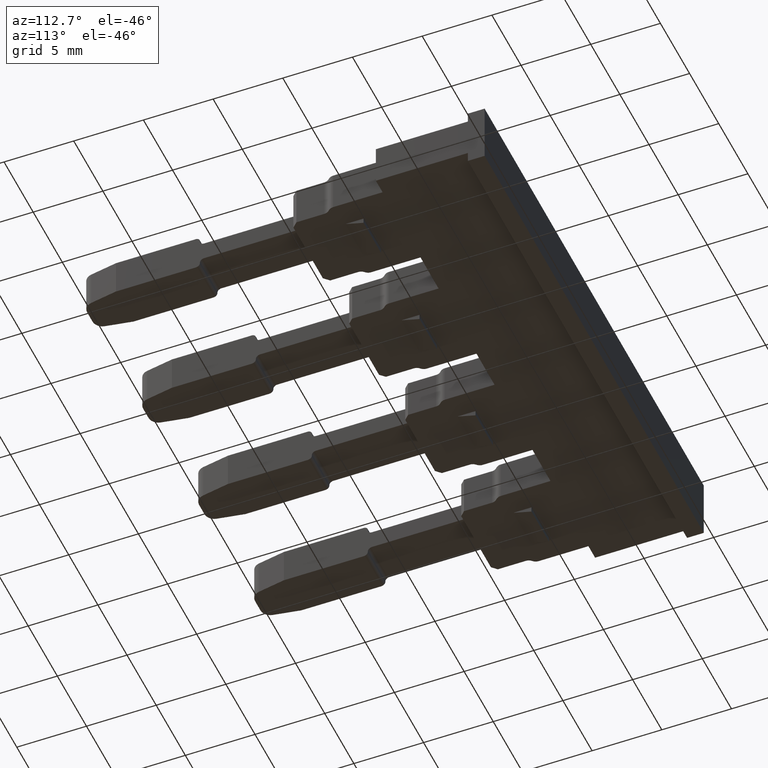
[diagram: clean part render]
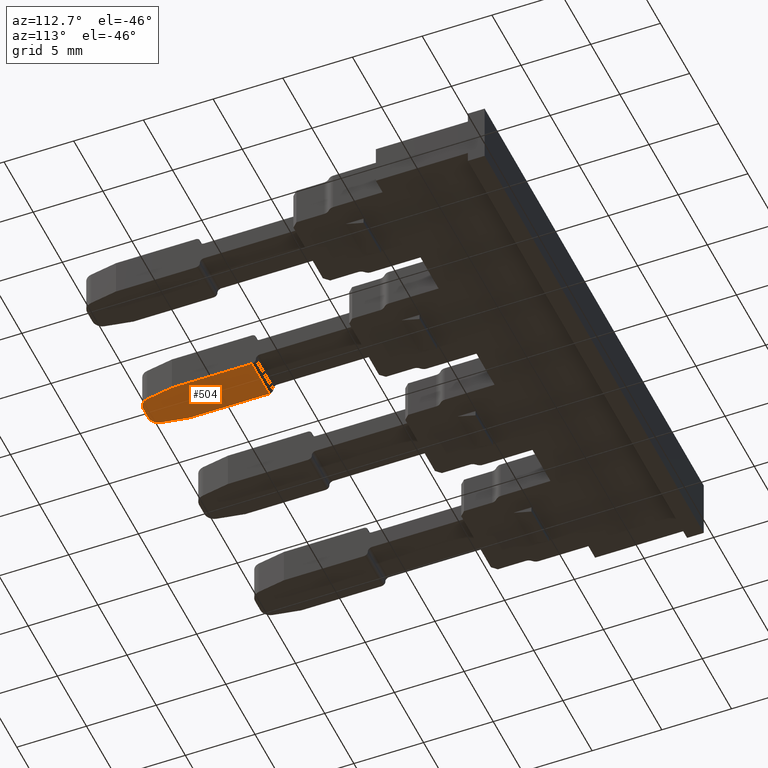
[diagram: same view with one face highlighted and labeled with its STEP entity id]
A machine part, auxiliary view. The second image highlights one B-rep face of the part: STEP entity #504.
In plain terms, the highlighted planar face has unit normal (0, -0, -1).
Its self-contained STEP definition (entity closure, byte-faithful):
#221 = EDGE_CURVE ( 'NONE', #5248, #5239, #5395, .T. ) ;
#229 = EDGE_CURVE ( 'NONE', #5221, #5223, #3565, .T. ) ;
#230 = EDGE_CURVE ( 'NONE', #5290, #5223, #5399, .T. ) ;
#249 = EDGE_CURVE ( 'NONE', #5249, #5202, #3654, .T. ) ;
#268 = EDGE_CURVE ( 'NONE', #5221, #5202, #3724, .T. ) ;
#275 = EDGE_CURVE ( 'NONE', #5290, #5239, #3744, .T. ) ;
#289 = EDGE_CURVE ( 'NONE', #5248, #5214, #3817, .T. ) ;
#329 = EDGE_CURVE ( 'NONE', #5214, #5249, #3880, .T. ) ;
#504 = ADVANCED_FACE ( 'NONE', ( #2441 ), #2430, .T. ) ;
#2240 = CARTESIAN_POINT ( 'NONE',  ( 1142.094434011691000, 646.6283161340937800, 0.1522013187405634200 ) ) ;
#2244 = CARTESIAN_POINT ( 'NONE',  ( 1145.094449358968400, 646.6283161340936700, 0.1522013187403572800 ) ) ;
#2257 = CARTESIAN_POINT ( 'NONE',  ( 1144.755614559366900, 644.7067378249282700, 0.1522013187407039700 ) ) ;
#2272 = CARTESIAN_POINT ( 'NONE',  ( 1145.094445258720700, 652.3527367076611700, 0.1522013187304284700 ) ) ;
#2294 = CARTESIAN_POINT ( 'NONE',  ( 1144.066249097331600, 644.1282913512167200, 0.1522013187406496500 ) ) ;
#2305 = CARTESIAN_POINT ( 'NONE',  ( 1142.433259543838600, 644.7067378249283800, 0.1522013187405768000 ) ) ;
#2307 = CARTESIAN_POINT ( 'NONE',  ( 1143.122625005873700, 644.1282913512167200, 0.1522013187406196800 ) ) ;
#2334 = CARTESIAN_POINT ( 'NONE',  ( 1142.094434011691000, 652.3527719075040100, 0.1522013187405798500 ) ) ;
#2426 = DIRECTION ( 'NONE',  ( -1.000000000000000000, 0.0000000000000000000, -5.364441115334514400E-014 ) ) ;
#2430 = PLANE ( 'NONE',  #3449 ) ;
#2441 = FACE_OUTER_BOUND ( 'NONE', #4862, .T. ) ;
#2453 = CARTESIAN_POINT ( 'NONE',  ( 1146.094434382171600, 641.5303140484550100, 0.1522013187407783600 ) ) ;
#2454 = DIRECTION ( 'NONE',  ( 5.364441115334514400E-014, -1.058364141383339600E-023, -1.000000000000000000 ) ) ;
#3177 = VECTOR ( 'NONE', #3609, 1000.000000000000100 ) ;
#3189 = VECTOR ( 'NONE', #3690, 1000.000000000000100 ) ;
#3194 = VECTOR ( 'NONE', #3800, 1000.000000000000100 ) ;
#3196 = VECTOR ( 'NONE', #3761, 1000.000000000000000 ) ;
#3231 = VECTOR ( 'NONE', #3672, 1000.000000000000100 ) ;
#3276 = VECTOR ( 'NONE', #3881, 1000.000000000000000 ) ;
#3449 = AXIS2_PLACEMENT_3D ( 'NONE', #2453, #2454, #2426 ) ;
#3561 = CARTESIAN_POINT ( 'NONE',  ( 1142.797460258348300, 644.1873518378538400, 0.1522013187405904800 ) ) ;
#3565 = LINE ( 'NONE', #3616, #3177 ) ;
#3566 = CARTESIAN_POINT ( 'NONE',  ( 1142.547886945760400, 644.3967687734997300, 0.1522013187405771600 ) ) ;
#3580 = CARTESIAN_POINT ( 'NONE',  ( 1142.461546339675100, 644.5463151644212300, 0.1522013187405724700 ) ) ;
#3581 = CARTESIAN_POINT ( 'NONE',  ( 1142.959727575498600, 644.1282913512168300, 0.1522013187405992200 ) ) ;
#3582 = CARTESIAN_POINT ( 'NONE',  ( 1142.433259543838600, 644.7067378249283800, 0.1522013187405768000 ) ) ;
#3584 = CARTESIAN_POINT ( 'NONE',  ( 1143.122625005873700, 644.1282913512167200, 0.1522013187406196800 ) ) ;
#3601 = CARTESIAN_POINT ( 'NONE',  ( 1144.755614559366900, 644.7067378249282700, 0.1522013187407039700 ) ) ;
#3606 = CARTESIAN_POINT ( 'NONE',  ( 1144.391413844857000, 644.1873518378542900, 0.1522013187406601200 ) ) ;
#3607 = CARTESIAN_POINT ( 'NONE',  ( 1144.640987157445100, 644.3967687734991600, 0.1522013187406734400 ) ) ;
#3609 = DIRECTION ( 'NONE',  ( -0.1736478946976743900, -0.9848078029072806500, -9.321079137593844600E-015 ) ) ;
#3614 = CARTESIAN_POINT ( 'NONE',  ( 1144.066249097331600, 644.1282913512167200, 0.1522013187406496500 ) ) ;
#3616 = CARTESIAN_POINT ( 'NONE',  ( 1145.094440091514600, 646.6283161340935500, 0.1522013187407247100 ) ) ;
#3622 = CARTESIAN_POINT ( 'NONE',  ( 1144.229146527706700, 644.1282913512167200, 0.1522013187406513800 ) ) ;
#3623 = CARTESIAN_POINT ( 'NONE',  ( 1144.727327763530900, 644.5463151644213400, 0.1522013187406780800 ) ) ;
#3654 = LINE ( 'NONE', #3674, #3231 ) ;
#3672 = DIRECTION ( 'NONE',  ( 0.9999999999311652800, -1.173325889926041300E-005, 5.364982877096552300E-014 ) ) ;
#3674 = CARTESIAN_POINT ( 'NONE',  ( 1142.094434011691000, 652.3527719075040100, 0.1522013187405637500 ) ) ;
#3681 = CARTESIAN_POINT ( 'NONE',  ( 1145.094449358964800, 646.6283210584171000, 0.1522013187407257900 ) ) ;
#3690 = DIRECTION ( 'NONE',  ( -7.162729585980651700E-007, 0.9999999999997434300, -1.798840361398137500E-012 ) ) ;
#3724 = LINE ( 'NONE', #3681, #3189 ) ;
#3744 = LINE ( 'NONE', #3746, #3196 ) ;
#3746 = CARTESIAN_POINT ( 'NONE',  ( 1135.207395039572200, 644.1282913512167200, 0.1522013187406430500 ) ) ;
#3761 = DIRECTION ( 'NONE',  ( -1.000000000000000000, 1.720418656508634100E-014, 0.0000000000000000000 ) ) ;
#3792 = CARTESIAN_POINT ( 'NONE',  ( 1142.433259543838600, 644.7067378249283800, 0.1522013187405819300 ) ) ;
#3800 = DIRECTION ( 'NONE',  ( -0.1736478946976646700, 0.9848078029072824300, -9.321079137593324000E-015 ) ) ;
#3817 = LINE ( 'NONE', #3792, #3194 ) ;
#3874 = CARTESIAN_POINT ( 'NONE',  ( 1142.094434011691000, 652.6527719075244200, 0.1522013187405632500 ) ) ;
#3880 = LINE ( 'NONE', #3874, #3276 ) ;
#3881 = DIRECTION ( 'NONE',  ( 0.0000000000000000000, 1.000000000000000000, 0.0000000000000000000 ) ) ;
#4862 = EDGE_LOOP ( 'NONE', ( #5288, #5292, #5328, #5276, #5340, #5367, #5372, #5319 ) ) ;
#5202 = VERTEX_POINT ( 'NONE', #2272 ) ;
#5214 = VERTEX_POINT ( 'NONE', #2240 ) ;
#5221 = VERTEX_POINT ( 'NONE', #2244 ) ;
#5223 = VERTEX_POINT ( 'NONE', #2257 ) ;
#5239 = VERTEX_POINT ( 'NONE', #2307 ) ;
#5248 = VERTEX_POINT ( 'NONE', #2305 ) ;
#5249 = VERTEX_POINT ( 'NONE', #2334 ) ;
#5276 = ORIENTED_EDGE ( 'NONE', *, *, #275, .T. ) ;
#5288 = ORIENTED_EDGE ( 'NONE', *, *, #268, .F. ) ;
#5290 = VERTEX_POINT ( 'NONE', #2294 ) ;
#5292 = ORIENTED_EDGE ( 'NONE', *, *, #229, .T. ) ;
#5319 = ORIENTED_EDGE ( 'NONE', *, *, #249, .T. ) ;
#5328 = ORIENTED_EDGE ( 'NONE', *, *, #230, .F. ) ;
#5340 = ORIENTED_EDGE ( 'NONE', *, *, #221, .F. ) ;
#5367 = ORIENTED_EDGE ( 'NONE', *, *, #289, .T. ) ;
#5372 = ORIENTED_EDGE ( 'NONE', *, *, #329, .T. ) ;
#5395 = B_SPLINE_CURVE_WITH_KNOTS ( 'NONE', 3,
 ( #3582, #3580, #3566, #3561, #3581, #3584 ),
 .UNSPECIFIED., .F., .F.,
 ( 4, 2, 4 ),
 ( 0.0000000000000000000, 0.5000000000000000000, 1.000000000000000000 ),
 .UNSPECIFIED. ) ;
#5399 = B_SPLINE_CURVE_WITH_KNOTS ( 'NONE', 3,
 ( #3614, #3622, #3606, #3607, #3623, #3601 ),
 .UNSPECIFIED., .F., .F.,
 ( 4, 2, 4 ),
 ( 0.0000000000000000000, 0.5000000000000000000, 1.000000000000000000 ),
 .UNSPECIFIED. ) ;